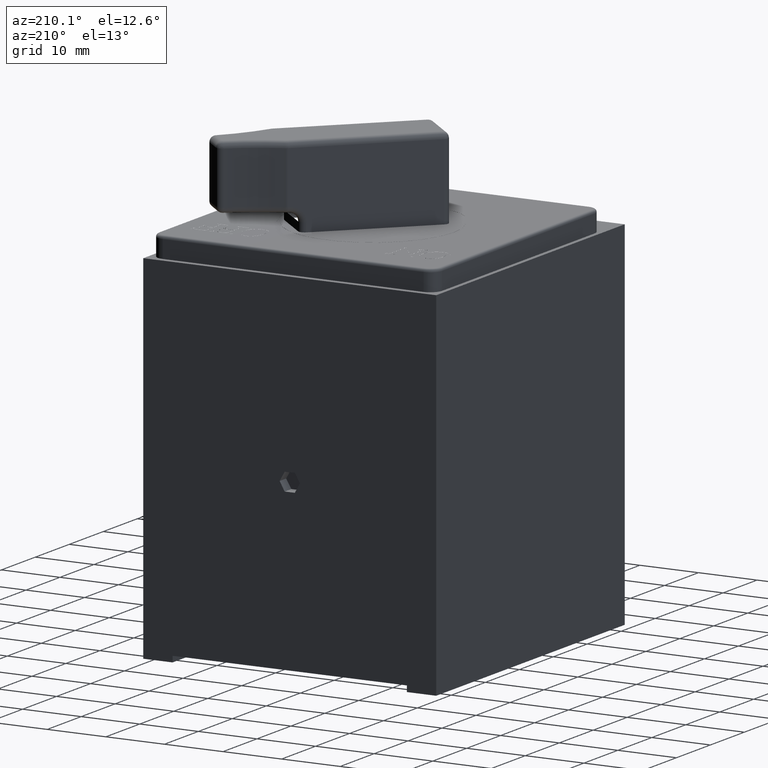
[diagram: clean part render]
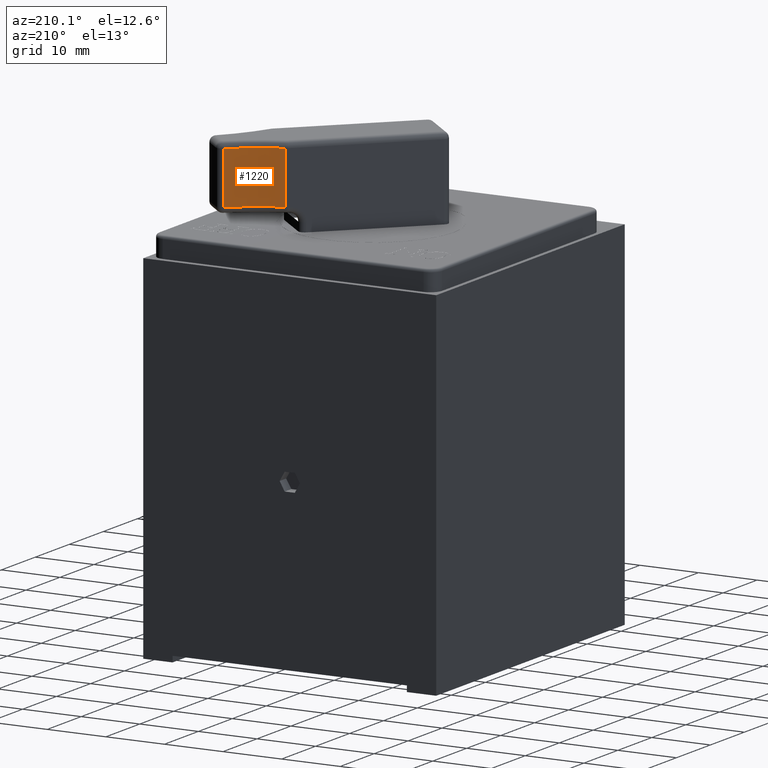
[diagram: same view with one face highlighted and labeled with its STEP entity id]
A machine part, auxiliary view. The second image highlights one B-rep face of the part: STEP entity #1220.
In plain terms, the highlighted cylindrical surface (partial cylindrical patch) has radius 27.3481 mm, axis along (-0, -0, -1).
Its self-contained STEP definition (entity closure, byte-faithful):
#139 = CARTESIAN_POINT ( 'NONE',  ( 0.4296111084192456600, 16.35230019352706100, 115.7999999999761900 ) ) ;
#213 = VERTEX_POINT ( 'NONE', #5429 ) ;
#242 = DIRECTION ( 'NONE',  ( 0.0000000000000000000, 0.0000000000000000000, 1.000000000000000000 ) ) ;
#317 = DIRECTION ( 'NONE',  ( -0.0000000000000000000, -0.0000000000000000000, -1.000000000000000000 ) ) ;
#491 = VECTOR ( 'NONE', #317, 1000.000000000000000 ) ;
#602 = DIRECTION ( 'NONE',  ( 0.0000000000000000000, 0.0000000000000000000, 1.000000000000000000 ) ) ;
#603 = ORIENTED_EDGE ( 'NONE', *, *, #4168, .T. ) ;
#740 = CARTESIAN_POINT ( 'NONE',  ( 8.211087193240755900, 21.13065539228778200, 125.6999999999761900 ) ) ;
#1127 = AXIS2_PLACEMENT_3D ( 'NONE', #4354, #2611, #3578 ) ;
#1134 = CARTESIAN_POINT ( 'NONE',  ( 0.4296111084192456600, 16.35230019352706100, 125.6999999999761900 ) ) ;
#1220 = ADVANCED_FACE ( 'NONE', ( #1830 ), #5632, .F. ) ;
#1483 = CARTESIAN_POINT ( 'NONE',  ( -9.789630165274843400, 41.71935658979384000, 125.6999999999761900 ) ) ;
#1737 = LINE ( 'NONE', #740, #491 ) ;
#1830 = FACE_OUTER_BOUND ( 'NONE', #5385, .T. ) ;
#2068 = CARTESIAN_POINT ( 'NONE',  ( -9.789630165274843400, 41.71935658979384000, 124.6999999999761900 ) ) ;
#2245 = VECTOR ( 'NONE', #242, 1000.000000000000000 ) ;
#2266 = EDGE_CURVE ( 'NONE', #3096, #4712, #3063, .T. ) ;
#2611 = DIRECTION ( 'NONE',  ( -0.0000000000000000000, -0.0000000000000000000, -1.000000000000000000 ) ) ;
#2687 = CIRCLE ( 'NONE', #1127, 27.34813416709359800 ) ;
#2722 = CARTESIAN_POINT ( 'NONE',  ( 8.211087193240759400, 21.13065539228778200, 124.6999999999761900 ) ) ;
#2829 = DIRECTION ( 'NONE',  ( -1.000000000000000000, 0.0000000000000000000, 0.0000000000000000000 ) ) ;
#2880 = CARTESIAN_POINT ( 'NONE',  ( 0.4296111084192448200, 16.35230019352706100, 124.6999999999761900 ) ) ;
#3062 = VERTEX_POINT ( 'NONE', #139 ) ;
#3063 = CIRCLE ( 'NONE', #5455, 27.34813416709359800 ) ;
#3096 = VERTEX_POINT ( 'NONE', #2880 ) ;
#3134 = EDGE_CURVE ( 'NONE', #3062, #3096, #4986, .T. ) ;
#3509 = ORIENTED_EDGE ( 'NONE', *, *, #2266, .T. ) ;
#3578 = DIRECTION ( 'NONE',  ( 1.000000000000000000, 0.0000000000000000000, 0.0000000000000000000 ) ) ;
#3623 = AXIS2_PLACEMENT_3D ( 'NONE', #1483, #4156, #2829 ) ;
#3857 = DIRECTION ( 'NONE',  ( 1.000000000000000000, 0.0000000000000000000, 0.0000000000000000000 ) ) ;
#4156 = DIRECTION ( 'NONE',  ( -0.0000000000000000000, -0.0000000000000000000, -1.000000000000000000 ) ) ;
#4168 = EDGE_CURVE ( 'NONE', #213, #3062, #2687, .T. ) ;
#4203 = EDGE_CURVE ( 'NONE', #4712, #213, #1737, .T. ) ;
#4354 = CARTESIAN_POINT ( 'NONE',  ( -9.789630165274843400, 41.71935658979384000, 115.7999999999761900 ) ) ;
#4418 = ORIENTED_EDGE ( 'NONE', *, *, #4203, .T. ) ;
#4495 = ORIENTED_EDGE ( 'NONE', *, *, #3134, .T. ) ;
#4712 = VERTEX_POINT ( 'NONE', #2722 ) ;
#4986 = LINE ( 'NONE', #1134, #2245 ) ;
#5385 = EDGE_LOOP ( 'NONE', ( #4418, #603, #4495, #3509 ) ) ;
#5429 = CARTESIAN_POINT ( 'NONE',  ( 8.211087193240755900, 21.13065539228778200, 115.7999999999761900 ) ) ;
#5455 = AXIS2_PLACEMENT_3D ( 'NONE', #2068, #602, #3857 ) ;
#5632 = CYLINDRICAL_SURFACE ( 'NONE', #3623, 27.34813416709359800 ) ;